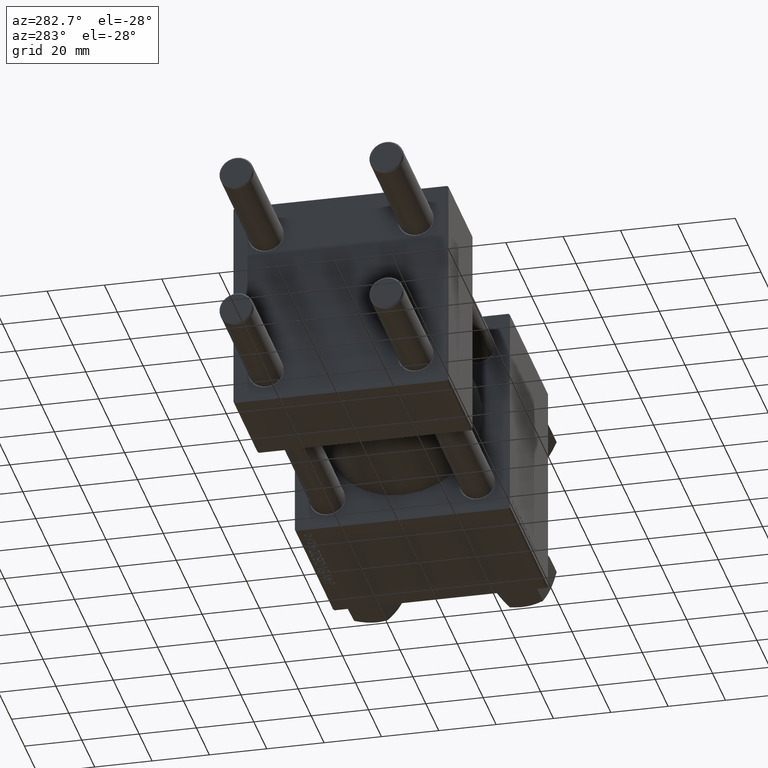
[diagram: clean part render]
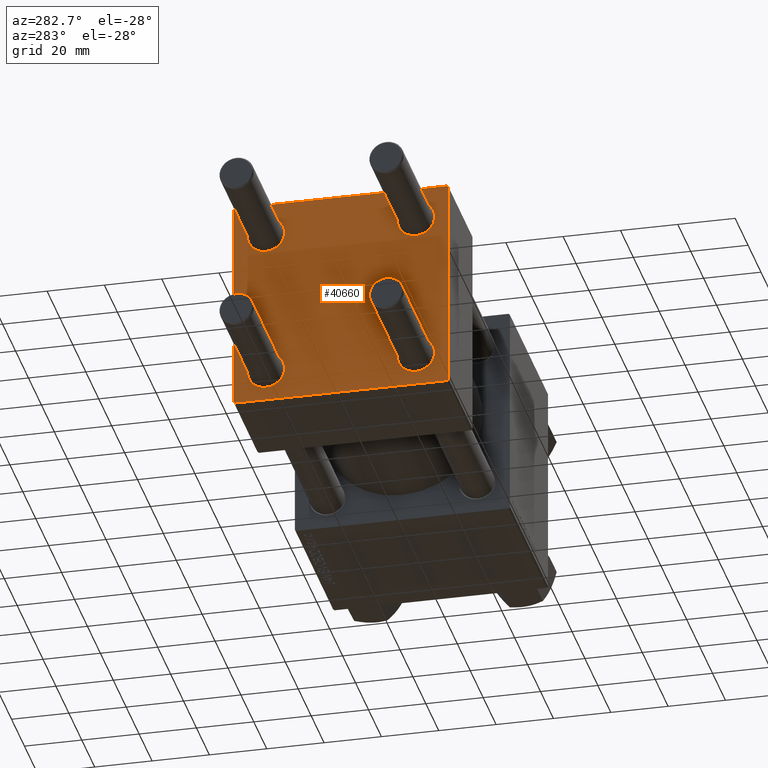
[diagram: same view with one face highlighted and labeled with its STEP entity id]
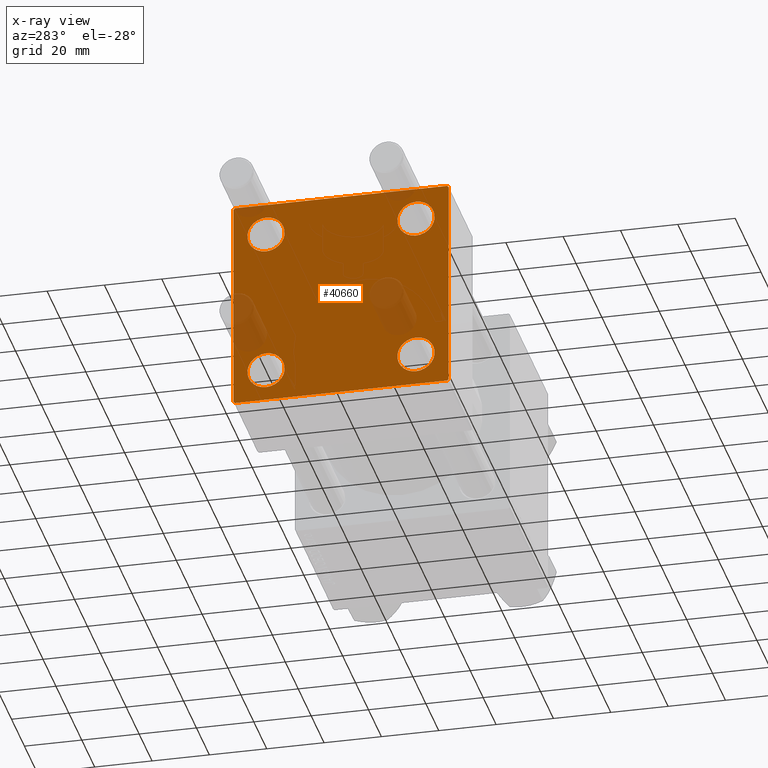
[diagram: x-ray of the same camera — body ghosted, the highlighted face saturated]
A machine part, auxiliary view. The second image highlights one B-rep face of the part: STEP entity #40660.
The next image is the same camera in x-ray: the body ghosted, the highlighted face saturated — about 10% of this face is hidden behind the body in this view.
In plain terms, the highlighted planar face has unit normal (-1, 0, 0).
Its self-contained STEP definition (entity closure, byte-faithful):
#24 = VERTEX_POINT ( 'NONE', #30484 ) ;
#56 = EDGE_CURVE ( 'NONE', #14877, #12852, #22659, .T. ) ;
#539 = VERTEX_POINT ( 'NONE', #32302 ) ;
#1091 = CARTESIAN_POINT ( 'NONE',  ( 0.000000000000000000, -26.14999999999999147, -32.65000000000002700 ) ) ;
#1370 = DIRECTION ( 'NONE',  ( 1.000000000000000000, -0.000000000000000000, 0.000000000000000000 ) ) ;
#1536 = EDGE_LOOP ( 'NONE', ( #4225, #44473, #8947, #9662, #16567, #24381, #27042, #37757 ) ) ;
#2193 = VECTOR ( 'NONE', #37565, 1000.000000000000114 ) ;
#2694 = EDGE_CURVE ( 'NONE', #539, #49464, #41684, .T. ) ;
#3386 = EDGE_CURVE ( 'NONE', #49464, #539, #46602, .T. ) ;
#3401 = ORIENTED_EDGE ( 'NONE', *, *, #14864, .T. ) ;
#3688 = CARTESIAN_POINT ( 'NONE',  ( 0.000000000000000000, 0.000000000000000000, 0.000000000000000000 ) ) ;
#3695 = CARTESIAN_POINT ( 'NONE',  ( 0.000000000000000000, 26.14999999999999858, -19.64999999999998792 ) ) ;
#3831 = CARTESIAN_POINT ( 'NONE',  ( 0.000000000000000000, -26.14999999999999147, -19.64999999999999503 ) ) ;
#3939 = FACE_BOUND ( 'NONE', #18828, .T. ) ;
#4043 = EDGE_CURVE ( 'NONE', #36444, #20262, #10268, .T. ) ;
#4225 = ORIENTED_EDGE ( 'NONE', *, *, #19432, .T. ) ;
#4485 = DIRECTION ( 'NONE',  ( 1.000000000000000000, -0.000000000000000000, 0.000000000000000000 ) ) ;
#4872 = AXIS2_PLACEMENT_3D ( 'NONE', #20906, #4485, #8516 ) ;
#4879 = CARTESIAN_POINT ( 'NONE',  ( 0.000000000000000000, 37.49999999999999289, 37.50000000000000000 ) ) ;
#5081 = CARTESIAN_POINT ( 'NONE',  ( 0.000000000000000000, 37.24999999999998579, -37.24999999999998579 ) ) ;
#5194 = EDGE_CURVE ( 'NONE', #21279, #32590, #8695, .T. ) ;
#5636 = CARTESIAN_POINT ( 'NONE',  ( 0.000000000000000000, 26.14999999999999858, -32.65000000000001990 ) ) ;
#7723 = FACE_BOUND ( 'NONE', #20866, .T. ) ;
#8464 = DIRECTION ( 'NONE',  ( 0.000000000000000000, -1.000000000000000000, -9.251858538542971581E-17 ) ) ;
#8516 = DIRECTION ( 'NONE',  ( 0.000000000000000000, 0.000000000000000000, 1.000000000000000000 ) ) ;
#8695 = CIRCLE ( 'NONE', #21620, 6.500000000000015987 ) ;
#8709 = DIRECTION ( 'NONE',  ( 1.000000000000000000, -0.000000000000000000, 0.000000000000000000 ) ) ;
#8769 = ORIENTED_EDGE ( 'NONE', *, *, #4043, .T. ) ;
#8832 = EDGE_LOOP ( 'NONE', ( #42607, #3401 ) ) ;
#8947 = ORIENTED_EDGE ( 'NONE', *, *, #30102, .T. ) ;
#9662 = ORIENTED_EDGE ( 'NONE', *, *, #56, .T. ) ;
#10268 = CIRCLE ( 'NONE', #19155, 6.500000000000023093 ) ;
#10471 = VERTEX_POINT ( 'NONE', #47109 ) ;
#10613 = DIRECTION ( 'NONE',  ( 1.000000000000000000, -0.000000000000000000, 0.000000000000000000 ) ) ;
#10726 = VERTEX_POINT ( 'NONE', #24332 ) ;
#11010 = ORIENTED_EDGE ( 'NONE', *, *, #5194, .T. ) ;
#11566 = VERTEX_POINT ( 'NONE', #1091 ) ;
#11762 = CARTESIAN_POINT ( 'NONE',  ( 0.000000000000000000, 26.14999999999999858, -26.15000000000000213 ) ) ;
#12266 = CARTESIAN_POINT ( 'NONE',  ( 0.000000000000000000, -37.50000000000000711, 36.99999999999999289 ) ) ;
#12457 = VERTEX_POINT ( 'NONE', #3831 ) ;
#12484 = CARTESIAN_POINT ( 'NONE',  ( 0.000000000000000000, 37.49999999999999289, 37.00000000000000000 ) ) ;
#12635 = EDGE_CURVE ( 'NONE', #10726, #45331, #24060, .T. ) ;
#12852 = VERTEX_POINT ( 'NONE', #22733 ) ;
#13733 = DIRECTION ( 'NONE',  ( 0.000000000000000000, -1.000000000000000000, -9.251858538542972814E-17 ) ) ;
#13905 = LINE ( 'NONE', #14651, #49522 ) ;
#14651 = CARTESIAN_POINT ( 'NONE',  ( 0.000000000000000000, -37.50000000000000711, 37.49999999999999289 ) ) ;
#14753 = ORIENTED_EDGE ( 'NONE', *, *, #3386, .T. ) ;
#14864 = EDGE_CURVE ( 'NONE', #11566, #12457, #33898, .T. ) ;
#14877 = VERTEX_POINT ( 'NONE', #43888 ) ;
#15675 = VECTOR ( 'NONE', #13733, 1000.000000000000000 ) ;
#16105 = EDGE_CURVE ( 'NONE', #24, #10471, #43587, .T. ) ;
#16567 = ORIENTED_EDGE ( 'NONE', *, *, #33060, .F. ) ;
#17046 = CARTESIAN_POINT ( 'NONE',  ( 0.000000000000000000, 26.14999999999999858, -26.15000000000000213 ) ) ;
#17450 = DIRECTION ( 'NONE',  ( -0.000000000000000000, -0.7071067811865474617, -0.7071067811865474617 ) ) ;
#17504 = AXIS2_PLACEMENT_3D ( 'NONE', #36605, #36847, #33805 ) ;
#17525 = LINE ( 'NONE', #44801, #15675 ) ;
#18615 = DIRECTION ( 'NONE',  ( 0.000000000000000000, -0.7071067811865524577, 0.7071067811865426878 ) ) ;
#18828 = EDGE_LOOP ( 'NONE', ( #8769, #36014 ) ) ;
#19155 = AXIS2_PLACEMENT_3D ( 'NONE', #36363, #39425, #20219 ) ;
#19432 = EDGE_CURVE ( 'NONE', #42957, #10726, #32166, .T. ) ;
#20046 = DIRECTION ( 'NONE',  ( 0.000000000000000000, 0.000000000000000000, 1.000000000000000000 ) ) ;
#20219 = DIRECTION ( 'NONE',  ( 0.000000000000000000, 0.000000000000000000, 1.000000000000000000 ) ) ;
#20262 = VERTEX_POINT ( 'NONE', #30176 ) ;
#20345 = CARTESIAN_POINT ( 'NONE',  ( 0.000000000000000000, 26.14999999999999858, 26.15000000000000213 ) ) ;
#20537 = CARTESIAN_POINT ( 'NONE',  ( 0.000000000000000000, 37.24999999999999289, 37.24999999999999289 ) ) ;
#20781 = DIRECTION ( 'NONE',  ( 0.000000000000000000, 0.7071067811865474617, -0.7071067811865474617 ) ) ;
#20866 = EDGE_LOOP ( 'NONE', ( #37902, #14753 ) ) ;
#20906 = CARTESIAN_POINT ( 'NONE',  ( 0.000000000000000000, -26.14999999999999147, -26.15000000000000924 ) ) ;
#21029 = LINE ( 'NONE', #20537, #45527 ) ;
#21279 = VERTEX_POINT ( 'NONE', #3695 ) ;
#21620 = AXIS2_PLACEMENT_3D ( 'NONE', #11762, #26197, #38806 ) ;
#22659 = LINE ( 'NONE', #41591, #27146 ) ;
#22733 = CARTESIAN_POINT ( 'NONE',  ( 0.000000000000000000, -37.50000000000000000, -37.00000000000003553 ) ) ;
#22816 = EDGE_CURVE ( 'NONE', #32590, #21279, #38867, .T. ) ;
#23250 = CIRCLE ( 'NONE', #35375, 6.500000000000015987 ) ;
#24060 = LINE ( 'NONE', #5081, #25014 ) ;
#24332 = CARTESIAN_POINT ( 'NONE',  ( 0.000000000000000000, 37.49999999999999289, -36.99999999999998579 ) ) ;
#24381 = ORIENTED_EDGE ( 'NONE', *, *, #46937, .T. ) ;
#24996 = CARTESIAN_POINT ( 'NONE',  ( 0.000000000000000000, -26.14999999999999147, 32.65000000000003411 ) ) ;
#25014 = VECTOR ( 'NONE', #17450, 1000.000000000000114 ) ;
#25633 = AXIS2_PLACEMENT_3D ( 'NONE', #20345, #8709, #44062 ) ;
#26052 = CARTESIAN_POINT ( 'NONE',  ( 0.000000000000000000, -26.14999999999999147, 26.15000000000000924 ) ) ;
#26197 = DIRECTION ( 'NONE',  ( 1.000000000000000000, -0.000000000000000000, 0.000000000000000000 ) ) ;
#26451 = CARTESIAN_POINT ( 'NONE',  ( -0.000000000000000000, -37.25000000000000000, 37.25000000000000000 ) ) ;
#26483 = AXIS2_PLACEMENT_3D ( 'NONE', #26052, #10613, #37655 ) ;
#27042 = ORIENTED_EDGE ( 'NONE', *, *, #16105, .F. ) ;
#27146 = VECTOR ( 'NONE', #18615, 1000.000000000000000 ) ;
#27202 = DIRECTION ( 'NONE',  ( -0.000000000000000000, 0.000000000000000000, 1.000000000000000000 ) ) ;
#27382 = DIRECTION ( 'NONE',  ( 1.000000000000000000, -0.000000000000000000, 0.000000000000000000 ) ) ;
#29365 = CARTESIAN_POINT ( 'NONE',  ( 0.000000000000000000, 36.99999999999997868, -37.50000000000000000 ) ) ;
#30102 = EDGE_CURVE ( 'NONE', #45331, #14877, #17525, .T. ) ;
#30176 = CARTESIAN_POINT ( 'NONE',  ( 0.000000000000000000, -26.14999999999999147, 19.64999999999999147 ) ) ;
#30239 = LINE ( 'NONE', #26451, #2193 ) ;
#30484 = CARTESIAN_POINT ( 'NONE',  ( 0.000000000000000000, 36.99999999999999289, 37.50000000000000000 ) ) ;
#30732 = PLANE ( 'NONE',  #41686 ) ;
#30782 = AXIS2_PLACEMENT_3D ( 'NONE', #17046, #1370, #47359 ) ;
#31289 = VERTEX_POINT ( 'NONE', #12266 ) ;
#32166 = LINE ( 'NONE', #4879, #49394 ) ;
#32302 = CARTESIAN_POINT ( 'NONE',  ( 0.000000000000000000, 26.14999999999999858, 32.65000000000002700 ) ) ;
#32590 = VERTEX_POINT ( 'NONE', #5636 ) ;
#32939 = CIRCLE ( 'NONE', #26483, 6.500000000000023093 ) ;
#33060 = EDGE_CURVE ( 'NONE', #31289, #12852, #13905, .T. ) ;
#33805 = DIRECTION ( 'NONE',  ( 0.000000000000000000, 0.000000000000000000, 1.000000000000000000 ) ) ;
#33898 = CIRCLE ( 'NONE', #4872, 6.500000000000015987 ) ;
#34023 = EDGE_CURVE ( 'NONE', #24, #42957, #21029, .T. ) ;
#35375 = AXIS2_PLACEMENT_3D ( 'NONE', #47069, #27382, #20046 ) ;
#36014 = ORIENTED_EDGE ( 'NONE', *, *, #43490, .T. ) ;
#36363 = CARTESIAN_POINT ( 'NONE',  ( 0.000000000000000000, -26.14999999999999147, 26.15000000000000924 ) ) ;
#36444 = VERTEX_POINT ( 'NONE', #24996 ) ;
#36605 = CARTESIAN_POINT ( 'NONE',  ( 0.000000000000000000, 26.14999999999999858, 26.15000000000000213 ) ) ;
#36847 = DIRECTION ( 'NONE',  ( 1.000000000000000000, -0.000000000000000000, 0.000000000000000000 ) ) ;
#37565 = DIRECTION ( 'NONE',  ( -0.000000000000000000, 0.7071067811865474617, 0.7071067811865474617 ) ) ;
#37655 = DIRECTION ( 'NONE',  ( 0.000000000000000000, 0.000000000000000000, 1.000000000000000000 ) ) ;
#37757 = ORIENTED_EDGE ( 'NONE', *, *, #34023, .T. ) ;
#37902 = ORIENTED_EDGE ( 'NONE', *, *, #2694, .T. ) ;
#38309 = DIRECTION ( 'NONE',  ( -1.000000000000000000, 0.000000000000000000, -0.000000000000000000 ) ) ;
#38733 = ORIENTED_EDGE ( 'NONE', *, *, #22816, .T. ) ;
#38806 = DIRECTION ( 'NONE',  ( 0.000000000000000000, 0.000000000000000000, 1.000000000000000000 ) ) ;
#38808 = VECTOR ( 'NONE', #8464, 1000.000000000000000 ) ;
#38867 = CIRCLE ( 'NONE', #30782, 6.500000000000015987 ) ;
#39069 = FACE_OUTER_BOUND ( 'NONE', #1536, .T. ) ;
#39425 = DIRECTION ( 'NONE',  ( 1.000000000000000000, -0.000000000000000000, 0.000000000000000000 ) ) ;
#39898 = CARTESIAN_POINT ( 'NONE',  ( 0.000000000000000000, 26.14999999999999858, 19.64999999999998437 ) ) ;
#40660 = ADVANCED_FACE ( 'NONE', ( #3939, #42341, #46884, #7723, #39069 ), #30732, .T. ) ;
#41591 = CARTESIAN_POINT ( 'NONE',  ( 0.000000000000000000, -37.24999999999975842, -37.25000000000027001 ) ) ;
#41684 = CIRCLE ( 'NONE', #17504, 6.500000000000023093 ) ;
#41686 = AXIS2_PLACEMENT_3D ( 'NONE', #3688, #38309, #27202 ) ;
#42341 = FACE_BOUND ( 'NONE', #8832, .T. ) ;
#42607 = ORIENTED_EDGE ( 'NONE', *, *, #48066, .T. ) ;
#42957 = VERTEX_POINT ( 'NONE', #12484 ) ;
#43490 = EDGE_CURVE ( 'NONE', #20262, #36444, #32939, .T. ) ;
#43587 = LINE ( 'NONE', #47870, #38808 ) ;
#43888 = CARTESIAN_POINT ( 'NONE',  ( 0.000000000000000000, -37.00000000000002132, -37.50000000000000711 ) ) ;
#44062 = DIRECTION ( 'NONE',  ( 0.000000000000000000, 0.000000000000000000, 1.000000000000000000 ) ) ;
#44473 = ORIENTED_EDGE ( 'NONE', *, *, #12635, .T. ) ;
#44801 = CARTESIAN_POINT ( 'NONE',  ( 0.000000000000000000, 37.49999999999999289, -37.50000000000000000 ) ) ;
#45331 = VERTEX_POINT ( 'NONE', #29365 ) ;
#45468 = DIRECTION ( 'NONE',  ( 0.000000000000000000, 9.251858538542971581E-17, -1.000000000000000000 ) ) ;
#45527 = VECTOR ( 'NONE', #20781, 1000.000000000000114 ) ;
#45566 = EDGE_LOOP ( 'NONE', ( #11010, #38733 ) ) ;
#46602 = CIRCLE ( 'NONE', #25633, 6.500000000000023093 ) ;
#46884 = FACE_BOUND ( 'NONE', #45566, .T. ) ;
#46937 = EDGE_CURVE ( 'NONE', #31289, #10471, #30239, .T. ) ;
#47069 = CARTESIAN_POINT ( 'NONE',  ( 0.000000000000000000, -26.14999999999999147, -26.15000000000000924 ) ) ;
#47109 = CARTESIAN_POINT ( 'NONE',  ( 0.000000000000000000, -37.00000000000000711, 37.49999999999999289 ) ) ;
#47359 = DIRECTION ( 'NONE',  ( 0.000000000000000000, 0.000000000000000000, 1.000000000000000000 ) ) ;
#47563 = DIRECTION ( 'NONE',  ( 0.000000000000000000, 0.000000000000000000, -1.000000000000000000 ) ) ;
#47870 = CARTESIAN_POINT ( 'NONE',  ( 0.000000000000000000, 37.49999999999999289, 37.50000000000000000 ) ) ;
#48066 = EDGE_CURVE ( 'NONE', #12457, #11566, #23250, .T. ) ;
#49394 = VECTOR ( 'NONE', #47563, 1000.000000000000000 ) ;
#49464 = VERTEX_POINT ( 'NONE', #39898 ) ;
#49522 = VECTOR ( 'NONE', #45468, 1000.000000000000000 ) ;